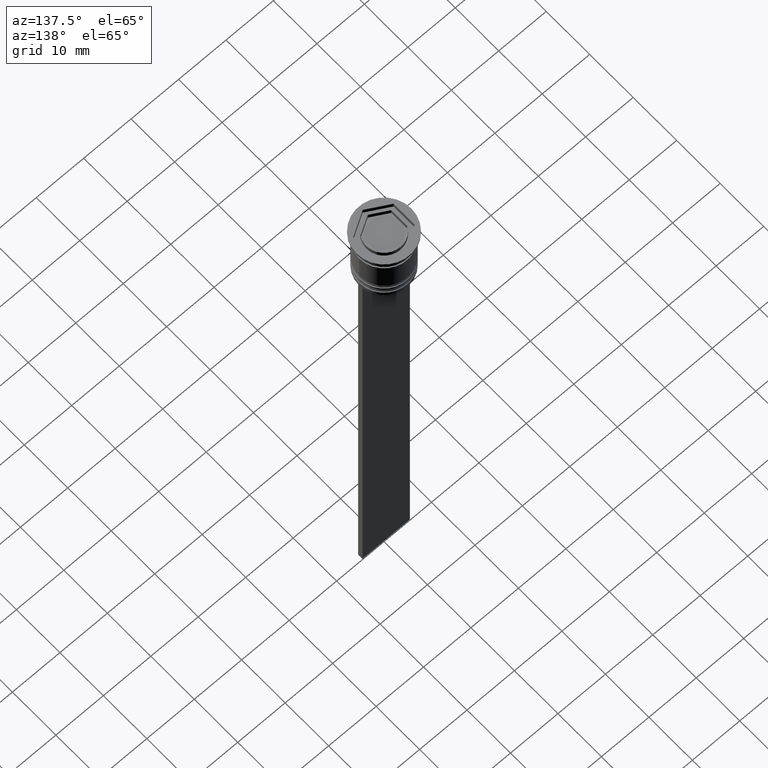
[diagram: clean part render]
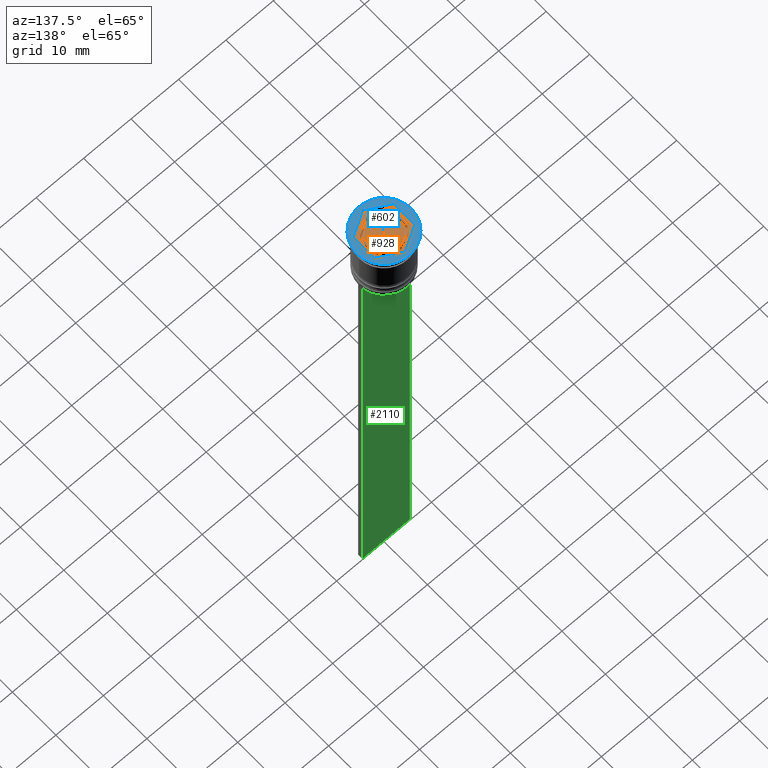
[diagram: same view with three faces highlighted in distinct colors, each labeled with its STEP entity id]
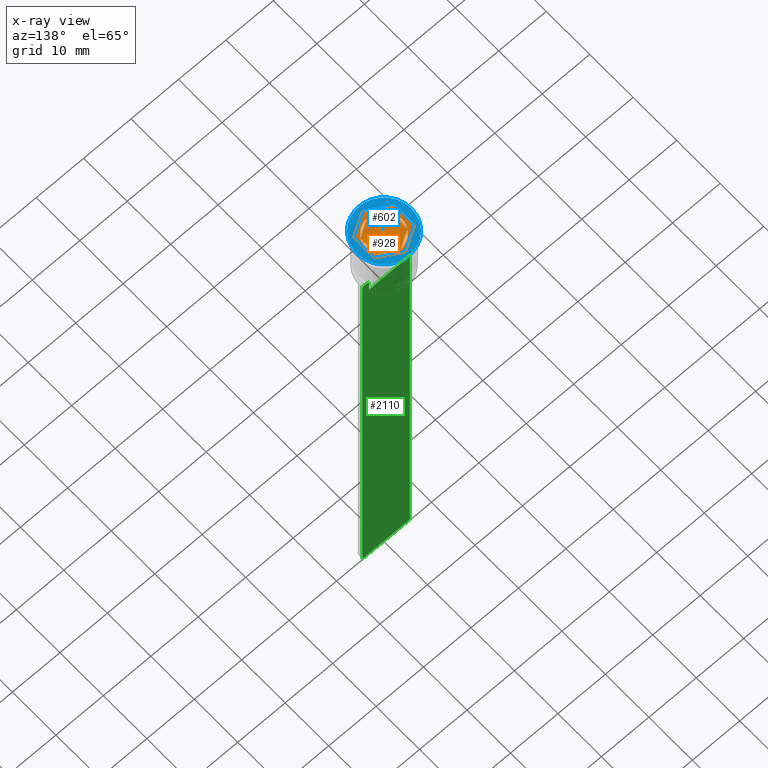
[diagram: x-ray of the same camera — body ghosted, the three highlighted faces saturated]
A machine part, auxiliary view with three faces highlighted in distinct colors.
The next image is the same camera in x-ray (body ghosted, the three faces saturated) — at least one of them is partly hidden behind the body in this view.
Their STEP definitions:

[orange] entity #928 — the highlighted planar face has unit normal (0, 0, 1).
#8 = CARTESIAN_POINT ( 'NONE',  ( -3.250000000000000444, 1.876388374866283515, -1.000000000000000888 ) ) ;
#10 = VECTOR ( 'NONE', #1110, 1000.000000000000114 ) ;
#20 = CIRCLE ( 'NONE', #2177, 3.750000000000000888 ) ;
#38 = EDGE_LOOP ( 'NONE', ( #1769, #494 ) ) ;
#65 = ORIENTED_EDGE ( 'NONE', *, *, #1223, .F. ) ;
#68 = DIRECTION ( 'NONE',  ( 1.000000000000000000, 0.000000000000000000, 0.000000000000000000 ) ) ;
#79 = EDGE_LOOP ( 'NONE', ( #2032, #2308, #65 ) ) ;
#100 = ORIENTED_EDGE ( 'NONE', *, *, #1462, .T. ) ;
#104 = VERTEX_POINT ( 'NONE', #1441 ) ;
#109 = CARTESIAN_POINT ( 'NONE',  ( 3.249999999999999556, -1.870828693386972885, -1.000000000000000888 ) ) ;
#122 = VECTOR ( 'NONE', #723, 1000.000000000000000 ) ;
#135 = CARTESIAN_POINT ( 'NONE',  ( -3.245185174601965983, 1.879168215605940384, -1.000000000000000888 ) ) ;
#141 = PLANE ( 'NONE',  #1309 ) ;
#194 = VERTEX_POINT ( 'NONE', #1233 ) ;
#197 = CARTESIAN_POINT ( 'NONE',  ( -4.250000000000000000, 2.453738644055909468, -1.000000000000000000 ) ) ;
#211 = EDGE_CURVE ( 'NONE', #1430, #440, #236, .T. ) ;
#236 = LINE ( 'NONE', #2232, #352 ) ;
#260 = VERTEX_POINT ( 'NONE', #1115 ) ;
#268 = DIRECTION ( 'NONE',  ( 0.000000000000000000, 0.000000000000000000, 1.000000000000000000 ) ) ;
#295 = DIRECTION ( 'NONE',  ( 1.000000000000000000, 0.000000000000000000, 0.000000000000000000 ) ) ;
#300 = ORIENTED_EDGE ( 'NONE', *, *, #736, .T. ) ;
#311 = EDGE_CURVE ( 'NONE', #411, #1304, #2056, .T. ) ;
#316 = VECTOR ( 'NONE', #1823, 1000.000000000000000 ) ;
#320 = VECTOR ( 'NONE', #994, 1000.000000000000114 ) ;
#341 = CARTESIAN_POINT ( 'NONE',  ( 0.000000000000000000, 0.000000000000000000, -1.000000000000000000 ) ) ;
#352 = VECTOR ( 'NONE', #563, 1000.000000000000000 ) ;
#357 = EDGE_CURVE ( 'NONE', #1160, #2197, #1724, .T. ) ;
#366 = CARTESIAN_POINT ( 'NONE',  ( -3.245185174601965983, -1.879168215605940384, -1.000000000000000888 ) ) ;
#367 = DIRECTION ( 'NONE',  ( 1.000000000000000000, 0.000000000000000000, 0.000000000000000000 ) ) ;
#406 = VERTEX_POINT ( 'NONE', #135 ) ;
#407 = LINE ( 'NONE', #1447, #1758 ) ;
#411 = VERTEX_POINT ( 'NONE', #1367 ) ;
#414 = EDGE_CURVE ( 'NONE', #861, #104, #853, .T. ) ;
#440 = VERTEX_POINT ( 'NONE', #109 ) ;
#445 = CARTESIAN_POINT ( 'NONE',  ( -3.250000000000000444, -1.876388374866283515, -1.000000000000000888 ) ) ;
#461 = AXIS2_PLACEMENT_3D ( 'NONE', #1986, #1229, #367 ) ;
#473 = LINE ( 'NONE', #1196, #320 ) ;
#478 = DIRECTION ( 'NONE',  ( 1.000000000000000000, 0.000000000000000000, 0.000000000000000000 ) ) ;
#485 = EDGE_CURVE ( 'NONE', #961, #260, #2014, .T. ) ;
#490 = FACE_BOUND ( 'NONE', #1055, .T. ) ;
#494 = ORIENTED_EDGE ( 'NONE', *, *, #2077, .F. ) ;
#504 = DIRECTION ( 'NONE',  ( 0.000000000000000000, 0.000000000000000000, 1.000000000000000000 ) ) ;
#514 = FACE_BOUND ( 'NONE', #932, .T. ) ;
#523 = FACE_BOUND ( 'NONE', #2277, .T. ) ;
#563 = DIRECTION ( 'NONE',  ( -4.622506457652797323E-16, -1.000000000000000000, 0.000000000000000000 ) ) ;
#576 = CIRCLE ( 'NONE', #1484, 3.750000000000000888 ) ;
#577 = CARTESIAN_POINT ( 'NONE',  ( 0.000000000000000000, 4.907477288111818936, -1.000000000000000000 ) ) ;
#580 = DIRECTION ( 'NONE',  ( 0.8660254037844385966, 0.5000000000000001110, 0.000000000000000000 ) ) ;
#607 = CIRCLE ( 'NONE', #1989, 3.750000000000000888 ) ;
#610 = EDGE_LOOP ( 'NONE', ( #300, #1288, #2314, #771, #100, #1235 ) ) ;
#621 = CARTESIAN_POINT ( 'NONE',  ( 0.004814825398034112622, 3.749996908992911493, -1.000000000000000888 ) ) ;
#628 = ORIENTED_EDGE ( 'NONE', *, *, #1260, .F. ) ;
#649 = CARTESIAN_POINT ( 'NONE',  ( -3.750000000000000888, 0.000000000000000000, -1.000000000000000000 ) ) ;
#652 = DIRECTION ( 'NONE',  ( 0.000000000000000000, 0.000000000000000000, 1.000000000000000000 ) ) ;
#654 = EDGE_CURVE ( 'NONE', #1387, #194, #576, .T. ) ;
#711 = FACE_BOUND ( 'NONE', #1913, .T. ) ;
#712 = CARTESIAN_POINT ( 'NONE',  ( 3.245185174601965095, 1.879168215605940828, -1.000000000000000888 ) ) ;
#723 = DIRECTION ( 'NONE',  ( 0.000000000000000000, 1.000000000000000000, 0.000000000000000000 ) ) ;
#736 = EDGE_CURVE ( 'NONE', #104, #411, #1342, .T. ) ;
#758 = LINE ( 'NONE', #197, #2133 ) ;
#771 = ORIENTED_EDGE ( 'NONE', *, *, #1600, .T. ) ;
#779 = DIRECTION ( 'NONE',  ( -0.8660254037844387076, -0.4999999999999999445, 0.000000000000000000 ) ) ;
#841 = ORIENTED_EDGE ( 'NONE', *, *, #1271, .F. ) ;
#853 = LINE ( 'NONE', #1572, #2250 ) ;
#857 = CARTESIAN_POINT ( 'NONE',  ( 4.392932287340942424E-16, -4.907477288111819824, -1.000000000000000000 ) ) ;
#861 = VERTEX_POINT ( 'NONE', #2266 ) ;
#897 = LINE ( 'NONE', #8, #122 ) ;
#904 = CARTESIAN_POINT ( 'NONE',  ( -4.250000000000000000, -2.453738644055909912, -1.000000000000000000 ) ) ;
#907 = FACE_BOUND ( 'NONE', #38, .T. ) ;
#923 = DIRECTION ( 'NONE',  ( 0.000000000000000000, -1.000000000000000000, 0.000000000000000000 ) ) ;
#928 = ADVANCED_FACE ( 'NONE', ( #711, #523, #514, #490, #1076, #907, #1978 ), #141, .T. ) ;
#932 = EDGE_LOOP ( 'NONE', ( #1926, #1168 ) ) ;
#947 = DIRECTION ( 'NONE',  ( 1.000000000000000000, 0.000000000000000000, 0.000000000000000000 ) ) ;
#953 = EDGE_CURVE ( 'NONE', #1390, #406, #20, .T. ) ;
#961 = VERTEX_POINT ( 'NONE', #1404 ) ;
#980 = EDGE_CURVE ( 'NONE', #440, #1430, #1175, .T. ) ;
#994 = DIRECTION ( 'NONE',  ( 0.8660254037844385966, 0.5000000000000001110, -0.000000000000000000 ) ) ;
#1012 = EDGE_CURVE ( 'NONE', #2040, #1500, #897, .T. ) ;
#1024 = LINE ( 'NONE', #445, #1626 ) ;
#1048 = CARTESIAN_POINT ( 'NONE',  ( 3.250000000000001332, 1.870828693386969777, -1.000000000000000888 ) ) ;
#1055 = EDGE_LOOP ( 'NONE', ( #1942, #841 ) ) ;
#1076 = FACE_BOUND ( 'NONE', #79, .T. ) ;
#1107 = CIRCLE ( 'NONE', #1227, 3.750000000000000888 ) ;
#1110 = DIRECTION ( 'NONE',  ( -0.8660254037844387076, 0.4999999999999998335, 0.000000000000000000 ) ) ;
#1115 = CARTESIAN_POINT ( 'NONE',  ( 0.004814825398034546303, -3.749996908992911493, -1.000000000000000888 ) ) ;
#1138 = DIRECTION ( 'NONE',  ( 0.000000000000000000, 0.000000000000000000, 1.000000000000000000 ) ) ;
#1145 = EDGE_CURVE ( 'NONE', #1304, #1328, #758, .T. ) ;
#1160 = VERTEX_POINT ( 'NONE', #621 ) ;
#1168 = ORIENTED_EDGE ( 'NONE', *, *, #485, .F. ) ;
#1175 = CIRCLE ( 'NONE', #461, 3.750000000000000888 ) ;
#1196 = CARTESIAN_POINT ( 'NONE',  ( 0.000000000000000000, 3.752776749732567474, -1.000000000000000888 ) ) ;
#1198 = ORIENTED_EDGE ( 'NONE', *, *, #980, .F. ) ;
#1210 = DIRECTION ( 'NONE',  ( 1.000000000000000000, 0.000000000000000000, -0.000000000000000000 ) ) ;
#1215 = DIRECTION ( 'NONE',  ( 0.8660254037844387076, -0.4999999999999998890, 0.000000000000000000 ) ) ;
#1223 = EDGE_CURVE ( 'NONE', #1695, #2040, #1300, .T. ) ;
#1227 = AXIS2_PLACEMENT_3D ( 'NONE', #2202, #1877, #68 ) ;
#1229 = DIRECTION ( 'NONE',  ( 0.000000000000000000, 0.000000000000000000, 1.000000000000000000 ) ) ;
#1233 = CARTESIAN_POINT ( 'NONE',  ( -0.004814825398034979984, -3.749996908992911937, -1.000000000000000888 ) ) ;
#1235 = ORIENTED_EDGE ( 'NONE', *, *, #414, .T. ) ;
#1260 = EDGE_CURVE ( 'NONE', #2197, #1160, #607, .T. ) ;
#1271 = EDGE_CURVE ( 'NONE', #194, #1387, #1024, .T. ) ;
#1288 = ORIENTED_EDGE ( 'NONE', *, *, #311, .T. ) ;
#1300 = CIRCLE ( 'NONE', #1338, 3.750000000000000888 ) ;
#1304 = VERTEX_POINT ( 'NONE', #2158 ) ;
#1309 = AXIS2_PLACEMENT_3D ( 'NONE', #341, #1787, #1210 ) ;
#1311 = AXIS2_PLACEMENT_3D ( 'NONE', #1607, #504, #1614 ) ;
#1316 = CARTESIAN_POINT ( 'NONE',  ( -3.250000000000000444, 1.870828693386971331, -1.000000000000000888 ) ) ;
#1328 = VERTEX_POINT ( 'NONE', #1604 ) ;
#1338 = AXIS2_PLACEMENT_3D ( 'NONE', #2274, #652, #295 ) ;
#1342 = LINE ( 'NONE', #2069, #10 ) ;
#1367 = CARTESIAN_POINT ( 'NONE',  ( 0.000000000000000000, 4.907477288111818936, -1.000000000000000000 ) ) ;
#1368 = VERTEX_POINT ( 'NONE', #857 ) ;
#1387 = VERTEX_POINT ( 'NONE', #366 ) ;
#1388 = CARTESIAN_POINT ( 'NONE',  ( 3.250000000000001332, 1.876388374866283959, -1.000000000000000888 ) ) ;
#1390 = VERTEX_POINT ( 'NONE', #2166 ) ;
#1404 = CARTESIAN_POINT ( 'NONE',  ( 3.245185174601965983, -1.879168215605940606, -1.000000000000000888 ) ) ;
#1413 = VECTOR ( 'NONE', #2162, 1000.000000000000114 ) ;
#1419 = DIRECTION ( 'NONE',  ( 1.000000000000000000, 0.000000000000000000, 0.000000000000000000 ) ) ;
#1430 = VERTEX_POINT ( 'NONE', #1048 ) ;
#1441 = CARTESIAN_POINT ( 'NONE',  ( 4.250000000000000000, 2.453738644055909912, -1.000000000000000000 ) ) ;
#1442 = CARTESIAN_POINT ( 'NONE',  ( -3.250000000000000444, -1.870828693386971331, -1.000000000000000888 ) ) ;
#1447 = CARTESIAN_POINT ( 'NONE',  ( 4.392932287340942424E-16, -4.907477288111819824, -1.000000000000000000 ) ) ;
#1462 = EDGE_CURVE ( 'NONE', #1368, #861, #407, .T. ) ;
#1484 = AXIS2_PLACEMENT_3D ( 'NONE', #2228, #1138, #947 ) ;
#1500 = VERTEX_POINT ( 'NONE', #1316 ) ;
#1572 = CARTESIAN_POINT ( 'NONE',  ( 4.250000000000000000, -2.453738644055909912, -1.000000000000000000 ) ) ;
#1600 = EDGE_CURVE ( 'NONE', #1328, #1368, #1812, .T. ) ;
#1604 = CARTESIAN_POINT ( 'NONE',  ( -4.250000000000000000, -2.453738644055909912, -1.000000000000000000 ) ) ;
#1607 = CARTESIAN_POINT ( 'NONE',  ( 0.000000000000000000, 0.000000000000000000, -1.000000000000000000 ) ) ;
#1614 = DIRECTION ( 'NONE',  ( 1.000000000000000000, 0.000000000000000000, 0.000000000000000000 ) ) ;
#1626 = VECTOR ( 'NONE', #1886, 1000.000000000000114 ) ;
#1695 = VERTEX_POINT ( 'NONE', #649 ) ;
#1724 = LINE ( 'NONE', #1388, #1992 ) ;
#1740 = CARTESIAN_POINT ( 'NONE',  ( 0.000000000000000000, 0.000000000000000000, -1.000000000000000000 ) ) ;
#1758 = VECTOR ( 'NONE', #580, 1000.000000000000000 ) ;
#1769 = ORIENTED_EDGE ( 'NONE', *, *, #953, .F. ) ;
#1787 = DIRECTION ( 'NONE',  ( 0.000000000000000000, 0.000000000000000000, 1.000000000000000000 ) ) ;
#1812 = LINE ( 'NONE', #904, #316 ) ;
#1823 = DIRECTION ( 'NONE',  ( 0.8660254037844387076, -0.4999999999999999445, 0.000000000000000000 ) ) ;
#1877 = DIRECTION ( 'NONE',  ( 0.000000000000000000, 0.000000000000000000, 1.000000000000000000 ) ) ;
#1886 = DIRECTION ( 'NONE',  ( -0.8660254037844385966, 0.5000000000000001110, 0.000000000000000000 ) ) ;
#1913 = EDGE_LOOP ( 'NONE', ( #628, #2124 ) ) ;
#1926 = ORIENTED_EDGE ( 'NONE', *, *, #2344, .F. ) ;
#1942 = ORIENTED_EDGE ( 'NONE', *, *, #654, .F. ) ;
#1954 = DIRECTION ( 'NONE',  ( 0.000000000000000000, 0.000000000000000000, 1.000000000000000000 ) ) ;
#1978 = FACE_OUTER_BOUND ( 'NONE', #610, .T. ) ;
#1986 = CARTESIAN_POINT ( 'NONE',  ( 0.000000000000000000, 0.000000000000000000, -1.000000000000000000 ) ) ;
#1989 = AXIS2_PLACEMENT_3D ( 'NONE', #1740, #268, #478 ) ;
#1992 = VECTOR ( 'NONE', #1215, 1000.000000000000000 ) ;
#2014 = LINE ( 'NONE', #2185, #1413 ) ;
#2032 = ORIENTED_EDGE ( 'NONE', *, *, #2276, .F. ) ;
#2040 = VERTEX_POINT ( 'NONE', #1442 ) ;
#2056 = LINE ( 'NONE', #577, #2063 ) ;
#2063 = VECTOR ( 'NONE', #779, 999.9999999999998863 ) ;
#2067 = CIRCLE ( 'NONE', #1311, 3.750000000000000888 ) ;
#2069 = CARTESIAN_POINT ( 'NONE',  ( 4.250000000000000000, 2.453738644055909912, -1.000000000000000000 ) ) ;
#2071 = ORIENTED_EDGE ( 'NONE', *, *, #211, .F. ) ;
#2077 = EDGE_CURVE ( 'NONE', #406, #1390, #473, .T. ) ;
#2124 = ORIENTED_EDGE ( 'NONE', *, *, #357, .F. ) ;
#2133 = VECTOR ( 'NONE', #923, 1000.000000000000000 ) ;
#2158 = CARTESIAN_POINT ( 'NONE',  ( -4.250000000000000000, 2.453738644055909468, -1.000000000000000000 ) ) ;
#2162 = DIRECTION ( 'NONE',  ( -0.8660254037844385966, -0.4999999999999999445, 0.000000000000000000 ) ) ;
#2166 = CARTESIAN_POINT ( 'NONE',  ( -0.004814825398034979984, 3.749996908992911937, -1.000000000000000888 ) ) ;
#2177 = AXIS2_PLACEMENT_3D ( 'NONE', #2315, #1954, #1419 ) ;
#2185 = CARTESIAN_POINT ( 'NONE',  ( -2.168404344971008868E-16, -3.752776749732567474, -1.000000000000000888 ) ) ;
#2197 = VERTEX_POINT ( 'NONE', #712 ) ;
#2202 = CARTESIAN_POINT ( 'NONE',  ( 0.000000000000000000, 0.000000000000000000, -1.000000000000000000 ) ) ;
#2228 = CARTESIAN_POINT ( 'NONE',  ( 0.000000000000000000, 0.000000000000000000, -1.000000000000000000 ) ) ;
#2232 = CARTESIAN_POINT ( 'NONE',  ( 3.249999999999999556, -1.876388374866284403, -1.000000000000000888 ) ) ;
#2250 = VECTOR ( 'NONE', #2306, 1000.000000000000000 ) ;
#2266 = CARTESIAN_POINT ( 'NONE',  ( 4.250000000000000000, -2.453738644055909912, -1.000000000000000000 ) ) ;
#2274 = CARTESIAN_POINT ( 'NONE',  ( 0.000000000000000000, 0.000000000000000000, -1.000000000000000000 ) ) ;
#2276 = EDGE_CURVE ( 'NONE', #1500, #1695, #2067, .T. ) ;
#2277 = EDGE_LOOP ( 'NONE', ( #1198, #2071 ) ) ;
#2306 = DIRECTION ( 'NONE',  ( 0.000000000000000000, 1.000000000000000000, 0.000000000000000000 ) ) ;
#2308 = ORIENTED_EDGE ( 'NONE', *, *, #1012, .F. ) ;
#2314 = ORIENTED_EDGE ( 'NONE', *, *, #1145, .T. ) ;
#2315 = CARTESIAN_POINT ( 'NONE',  ( 0.000000000000000000, 0.000000000000000000, -1.000000000000000000 ) ) ;
#2344 = EDGE_CURVE ( 'NONE', #260, #961, #1107, .T. ) ;

[blue] entity #602 — the highlighted planar face has unit normal (0, -0, 1).
#33 = CARTESIAN_POINT ( 'NONE',  ( 0.000000000000000000, 4.907477288111818936, 0.000000000000000000 ) ) ;
#45 = LINE ( 'NONE', #1119, #926 ) ;
#52 = AXIS2_PLACEMENT_3D ( 'NONE', #695, #2154, #517 ) ;
#56 = VECTOR ( 'NONE', #1906, 1000.000000000000000 ) ;
#101 = DIRECTION ( 'NONE',  ( -0.8660254037844387076, -0.4999999999999999445, 0.000000000000000000 ) ) ;
#294 = LINE ( 'NONE', #1147, #1445 ) ;
#312 = CARTESIAN_POINT ( 'NONE',  ( -4.250000000000000000, -2.453738644055909912, 0.000000000000000000 ) ) ;
#360 = PLANE ( 'NONE',  #1033 ) ;
#439 = CARTESIAN_POINT ( 'NONE',  ( 4.250000000000000000, 2.453738644055909912, 0.000000000000000000 ) ) ;
#482 = LINE ( 'NONE', #1538, #56 ) ;
#517 = DIRECTION ( 'NONE',  ( 1.000000000000000000, 0.000000000000000000, 0.000000000000000000 ) ) ;
#546 = ORIENTED_EDGE ( 'NONE', *, *, #2108, .T. ) ;
#585 = EDGE_CURVE ( 'NONE', #1892, #2204, #1795, .T. ) ;
#602 = ADVANCED_FACE ( 'NONE', ( #1065, #1793 ), #360, .T. ) ;
#606 = ORIENTED_EDGE ( 'NONE', *, *, #722, .F. ) ;
#666 = VERTEX_POINT ( 'NONE', #1866 ) ;
#673 = CARTESIAN_POINT ( 'NONE',  ( 5.750000000000000000, 0.000000000000000000, 0.000000000000000000 ) ) ;
#687 = AXIS2_PLACEMENT_3D ( 'NONE', #1743, #1920, #1731 ) ;
#695 = CARTESIAN_POINT ( 'NONE',  ( 0.000000000000000000, 0.000000000000000000, 0.000000000000000000 ) ) ;
#722 = EDGE_CURVE ( 'NONE', #742, #2047, #45, .T. ) ;
#742 = VERTEX_POINT ( 'NONE', #1751 ) ;
#761 = EDGE_CURVE ( 'NONE', #666, #742, #1195, .T. ) ;
#791 = EDGE_LOOP ( 'NONE', ( #2188, #546 ) ) ;
#811 = CARTESIAN_POINT ( 'NONE',  ( -4.250000000000000000, 2.453738644055909468, 0.000000000000000000 ) ) ;
#827 = LINE ( 'NONE', #1870, #1409 ) ;
#909 = ORIENTED_EDGE ( 'NONE', *, *, #1784, .F. ) ;
#926 = VECTOR ( 'NONE', #1461, 1000.000000000000000 ) ;
#1023 = LINE ( 'NONE', #1982, #1991 ) ;
#1033 = AXIS2_PLACEMENT_3D ( 'NONE', #1805, #1439, #2171 ) ;
#1065 = FACE_BOUND ( 'NONE', #1688, .T. ) ;
#1119 = CARTESIAN_POINT ( 'NONE',  ( 4.250000000000000000, -2.453738644055909912, 0.000000000000000000 ) ) ;
#1147 = CARTESIAN_POINT ( 'NONE',  ( 4.250000000000000000, 2.453738644055909912, 0.000000000000000000 ) ) ;
#1195 = LINE ( 'NONE', #2114, #1876 ) ;
#1205 = DIRECTION ( 'NONE',  ( 0.8660254037844385966, 0.5000000000000001110, 0.000000000000000000 ) ) ;
#1222 = DIRECTION ( 'NONE',  ( 0.000000000000000000, -1.000000000000000000, 0.000000000000000000 ) ) ;
#1282 = CARTESIAN_POINT ( 'NONE',  ( -5.750000000000000000, 7.041719095097280880E-16, 0.000000000000000000 ) ) ;
#1403 = ORIENTED_EDGE ( 'NONE', *, *, #761, .F. ) ;
#1409 = VECTOR ( 'NONE', #101, 999.9999999999998863 ) ;
#1439 = DIRECTION ( 'NONE',  ( 0.000000000000000000, -0.000000000000000000, 1.000000000000000000 ) ) ;
#1445 = VECTOR ( 'NONE', #1884, 1000.000000000000114 ) ;
#1461 = DIRECTION ( 'NONE',  ( 0.000000000000000000, 1.000000000000000000, 0.000000000000000000 ) ) ;
#1487 = VERTEX_POINT ( 'NONE', #33 ) ;
#1538 = CARTESIAN_POINT ( 'NONE',  ( -4.250000000000000000, -2.453738644055909912, 0.000000000000000000 ) ) ;
#1643 = EDGE_CURVE ( 'NONE', #1487, #2149, #827, .T. ) ;
#1688 = EDGE_LOOP ( 'NONE', ( #1983, #606, #1403, #2009, #909, #1813 ) ) ;
#1708 = EDGE_CURVE ( 'NONE', #2047, #1487, #294, .T. ) ;
#1731 = DIRECTION ( 'NONE',  ( 1.000000000000000000, 0.000000000000000000, 0.000000000000000000 ) ) ;
#1743 = CARTESIAN_POINT ( 'NONE',  ( 0.000000000000000000, 0.000000000000000000, 0.000000000000000000 ) ) ;
#1751 = CARTESIAN_POINT ( 'NONE',  ( 4.250000000000000000, -2.453738644055909912, 0.000000000000000000 ) ) ;
#1784 = EDGE_CURVE ( 'NONE', #2149, #1885, #1023, .T. ) ;
#1793 = FACE_OUTER_BOUND ( 'NONE', #791, .T. ) ;
#1795 = CIRCLE ( 'NONE', #52, 5.750000000000000000 ) ;
#1805 = CARTESIAN_POINT ( 'NONE',  ( 0.000000000000000000, 0.000000000000000000, 0.000000000000000000 ) ) ;
#1813 = ORIENTED_EDGE ( 'NONE', *, *, #1643, .F. ) ;
#1866 = CARTESIAN_POINT ( 'NONE',  ( 4.392932287340942424E-16, -4.907477288111819824, 0.000000000000000000 ) ) ;
#1870 = CARTESIAN_POINT ( 'NONE',  ( 0.000000000000000000, 4.907477288111818936, 0.000000000000000000 ) ) ;
#1876 = VECTOR ( 'NONE', #1205, 1000.000000000000000 ) ;
#1884 = DIRECTION ( 'NONE',  ( -0.8660254037844387076, 0.4999999999999998335, 0.000000000000000000 ) ) ;
#1885 = VERTEX_POINT ( 'NONE', #312 ) ;
#1892 = VERTEX_POINT ( 'NONE', #673 ) ;
#1906 = DIRECTION ( 'NONE',  ( 0.8660254037844387076, -0.4999999999999999445, 0.000000000000000000 ) ) ;
#1920 = DIRECTION ( 'NONE',  ( -0.000000000000000000, -0.000000000000000000, 1.000000000000000000 ) ) ;
#1982 = CARTESIAN_POINT ( 'NONE',  ( -4.250000000000000000, 2.453738644055909468, 0.000000000000000000 ) ) ;
#1983 = ORIENTED_EDGE ( 'NONE', *, *, #1708, .F. ) ;
#1991 = VECTOR ( 'NONE', #1222, 1000.000000000000000 ) ;
#2009 = ORIENTED_EDGE ( 'NONE', *, *, #2161, .F. ) ;
#2047 = VERTEX_POINT ( 'NONE', #439 ) ;
#2101 = CIRCLE ( 'NONE', #687, 5.750000000000000000 ) ;
#2108 = EDGE_CURVE ( 'NONE', #2204, #1892, #2101, .T. ) ;
#2114 = CARTESIAN_POINT ( 'NONE',  ( 4.392932287340942424E-16, -4.907477288111819824, 0.000000000000000000 ) ) ;
#2149 = VERTEX_POINT ( 'NONE', #811 ) ;
#2154 = DIRECTION ( 'NONE',  ( -0.000000000000000000, -0.000000000000000000, 1.000000000000000000 ) ) ;
#2161 = EDGE_CURVE ( 'NONE', #1885, #666, #482, .T. ) ;
#2171 = DIRECTION ( 'NONE',  ( 1.000000000000000000, 0.000000000000000000, 0.000000000000000000 ) ) ;
#2188 = ORIENTED_EDGE ( 'NONE', *, *, #585, .T. ) ;
#2204 = VERTEX_POINT ( 'NONE', #1282 ) ;

[green] entity #2110 — the highlighted planar face has unit normal (0, -1, -0).
#50 = LINE ( 'NONE', #1358, #648 ) ;
#62 = ORIENTED_EDGE ( 'NONE', *, *, #1401, .T. ) ;
#70 = EDGE_CURVE ( 'NONE', #1188, #369, #979, .T. ) ;
#113 = ORIENTED_EDGE ( 'NONE', *, *, #70, .T. ) ;
#114 = CARTESIAN_POINT ( 'NONE',  ( -4.999999999999999112, 0.4999999999999993339, -12.50000000000000000 ) ) ;
#139 = EDGE_CURVE ( 'NONE', #1771, #1064, #716, .T. ) ;
#165 = VERTEX_POINT ( 'NONE', #1819 ) ;
#176 = B_SPLINE_CURVE_WITH_KNOTS ( 'NONE', 3,
 ( #2283, #644, #1380, #2109 ),
 .UNSPECIFIED., .F., .F.,
 ( 4, 4 ),
 ( 0.007067514914986626831, 0.007777582239375527978 ),
 .UNSPECIFIED. ) ;
#247 = CARTESIAN_POINT ( 'NONE',  ( -4.999999999999999112, 0.4999999999999991673, -2.450124378879110054 ) ) ;
#262 = CARTESIAN_POINT ( 'NONE',  ( 4.119769411022908834, 0.4999999999999991673, -12.50000000000000000 ) ) ;
#336 = EDGE_CURVE ( 'NONE', #349, #1466, #50, .T. ) ;
#349 = VERTEX_POINT ( 'NONE', #1525 ) ;
#354 = VECTOR ( 'NONE', #1458, 1000.000000000000000 ) ;
#369 = VERTEX_POINT ( 'NONE', #2260 ) ;
#374 = CARTESIAN_POINT ( 'NONE',  ( 3.615591237958188042, 0.4999999999999991673, -13.00000000000000178 ) ) ;
#388 = CARTESIAN_POINT ( 'NONE',  ( 3.615591237958188042, 0.4999999999999991673, -13.00000000000000178 ) ) ;
#429 = VECTOR ( 'NONE', #1577, 1000.000000000000000 ) ;
#446 = EDGE_CURVE ( 'NONE', #165, #1245, #176, .T. ) ;
#449 = CARTESIAN_POINT ( 'NONE',  ( 5.000000000000000000, 0.4999999999999991673, -2.450124378879110054 ) ) ;
#510 = ORIENTED_EDGE ( 'NONE', *, *, #2043, .T. ) ;
#525 = CARTESIAN_POINT ( 'NONE',  ( 5.000000000000000000, 0.4999999999999991673, -2.450124378879110054 ) ) ;
#553 = EDGE_CURVE ( 'NONE', #369, #349, #1770, .T. ) ;
#567 = EDGE_LOOP ( 'NONE', ( #1888, #2292, #713, #62, #1801, #510, #113, #915, #751, #2282 ) ) ;
#644 = CARTESIAN_POINT ( 'NONE',  ( -3.951794205566887985, 0.4999999999999991673, -12.66675159355373737 ) ) ;
#648 = VECTOR ( 'NONE', #2117, 1000.000000000000000 ) ;
#710 = CARTESIAN_POINT ( 'NONE',  ( 0.000000000000000000, 0.4999999999999991673, -15.50000000000000000 ) ) ;
#713 = ORIENTED_EDGE ( 'NONE', *, *, #1455, .T. ) ;
#716 = LINE ( 'NONE', #901, #2137 ) ;
#746 = CARTESIAN_POINT ( 'NONE',  ( -4.999999999999999112, 0.4999999999999991673, -112.5000000000000000 ) ) ;
#751 = ORIENTED_EDGE ( 'NONE', *, *, #336, .T. ) ;
#773 = DIRECTION ( 'NONE',  ( 0.000000000000000000, 0.000000000000000000, -1.000000000000000000 ) ) ;
#793 = CARTESIAN_POINT ( 'NONE',  ( 5.000000000000000000, 0.4999999999999991673, -12.50000000000000000 ) ) ;
#854 = VERTEX_POINT ( 'NONE', #114 ) ;
#901 = CARTESIAN_POINT ( 'NONE',  ( 3.615591237958188042, 0.4999999999999991673, 0.000000000000000000 ) ) ;
#915 = ORIENTED_EDGE ( 'NONE', *, *, #553, .T. ) ;
#934 = LINE ( 'NONE', #1491, #354 ) ;
#979 = LINE ( 'NONE', #793, #1869 ) ;
#990 = CARTESIAN_POINT ( 'NONE',  ( -3.615591237958188042, 0.4999999999999991673, -13.00000000000000178 ) ) ;
#1027 = DIRECTION ( 'NONE',  ( 0.000000000000000000, 0.000000000000000000, -1.000000000000000000 ) ) ;
#1062 = LINE ( 'NONE', #247, #2330 ) ;
#1064 = VERTEX_POINT ( 'NONE', #388 ) ;
#1089 = LINE ( 'NONE', #1706, #1448 ) ;
#1155 = CARTESIAN_POINT ( 'NONE',  ( 3.951794168112527927, 0.4999999999999991673, -12.66675163073525923 ) ) ;
#1188 = VERTEX_POINT ( 'NONE', #1727 ) ;
#1245 = VERTEX_POINT ( 'NONE', #990 ) ;
#1255 = DIRECTION ( 'NONE',  ( 0.000000000000000000, 0.000000000000000000, -1.000000000000000000 ) ) ;
#1341 = VECTOR ( 'NONE', #1255, 1000.000000000000000 ) ;
#1358 = CARTESIAN_POINT ( 'NONE',  ( 5.000000000000000000, 0.4999999999999991673, -112.5000000000000000 ) ) ;
#1380 = CARTESIAN_POINT ( 'NONE',  ( -3.783746449387932920, 0.4999999999999991673, -12.83342999751715752 ) ) ;
#1401 = EDGE_CURVE ( 'NONE', #2310, #1771, #1565, .T. ) ;
#1411 = B_SPLINE_CURVE_WITH_KNOTS ( 'NONE', 3,
 ( #374, #2178, #1155, #262 ),
 .UNSPECIFIED., .F., .F.,
 ( 4, 4 ),
 ( 0.01745179617248911533, 0.01816207215777259493 ),
 .UNSPECIFIED. ) ;
#1448 = VECTOR ( 'NONE', #1820, 1000.000000000000000 ) ;
#1455 = EDGE_CURVE ( 'NONE', #1245, #2310, #934, .T. ) ;
#1458 = DIRECTION ( 'NONE',  ( 0.000000000000000000, 0.000000000000000000, -1.000000000000000000 ) ) ;
#1466 = VERTEX_POINT ( 'NONE', #746 ) ;
#1491 = CARTESIAN_POINT ( 'NONE',  ( -3.615591237958188042, 0.4999999999999991673, 0.000000000000000000 ) ) ;
#1514 = DIRECTION ( 'NONE',  ( 1.000000000000000000, 0.000000000000000000, 0.000000000000000000 ) ) ;
#1525 = CARTESIAN_POINT ( 'NONE',  ( 5.000000000000000000, 0.4999999999999991673, -112.5000000000000000 ) ) ;
#1529 = CARTESIAN_POINT ( 'NONE',  ( 3.615591237958188486, 0.4999999999999991673, -15.50000000000000000 ) ) ;
#1565 = LINE ( 'NONE', #710, #429 ) ;
#1577 = DIRECTION ( 'NONE',  ( 1.000000000000000000, 0.000000000000000000, 0.000000000000000000 ) ) ;
#1616 = DIRECTION ( 'NONE',  ( -0.000000000000000000, -0.000000000000000000, 1.000000000000000000 ) ) ;
#1706 = CARTESIAN_POINT ( 'NONE',  ( 5.000000000000000000, 0.4999999999999991673, -12.50000000000000000 ) ) ;
#1720 = FACE_OUTER_BOUND ( 'NONE', #567, .T. ) ;
#1727 = CARTESIAN_POINT ( 'NONE',  ( 4.119769411022908834, 0.4999999999999991673, -12.50000000000000000 ) ) ;
#1770 = LINE ( 'NONE', #525, #1341 ) ;
#1771 = VERTEX_POINT ( 'NONE', #1529 ) ;
#1801 = ORIENTED_EDGE ( 'NONE', *, *, #139, .T. ) ;
#1819 = CARTESIAN_POINT ( 'NONE',  ( -4.119769411022908834, 0.4999999999999991673, -12.50000000000000000 ) ) ;
#1820 = DIRECTION ( 'NONE',  ( 1.000000000000000000, 0.000000000000000000, 0.000000000000000000 ) ) ;
#1869 = VECTOR ( 'NONE', #1514, 1000.000000000000000 ) ;
#1888 = ORIENTED_EDGE ( 'NONE', *, *, #1935, .T. ) ;
#1935 = EDGE_CURVE ( 'NONE', #854, #165, #1089, .T. ) ;
#1987 = CARTESIAN_POINT ( 'NONE',  ( -3.615591237958188486, 0.4999999999999991673, -15.50000000000000000 ) ) ;
#2029 = AXIS2_PLACEMENT_3D ( 'NONE', #449, #2280, #1027 ) ;
#2043 = EDGE_CURVE ( 'NONE', #1064, #1188, #1411, .T. ) ;
#2109 = CARTESIAN_POINT ( 'NONE',  ( -3.615591237958188042, 0.4999999999999991673, -13.00000000000000178 ) ) ;
#2110 = ADVANCED_FACE ( 'NONE', ( #1720 ), #2305, .F. ) ;
#2117 = DIRECTION ( 'NONE',  ( -1.000000000000000000, 0.000000000000000000, 0.000000000000000000 ) ) ;
#2137 = VECTOR ( 'NONE', #1616, 1000.000000000000000 ) ;
#2178 = CARTESIAN_POINT ( 'NONE',  ( 3.783746406711540722, 0.4999999999999991673, -12.83343003979123509 ) ) ;
#2260 = CARTESIAN_POINT ( 'NONE',  ( 5.000000000000000000, 0.4999999999999991673, -12.50000000000000000 ) ) ;
#2280 = DIRECTION ( 'NONE',  ( 0.000000000000000000, -1.000000000000000000, -0.000000000000000000 ) ) ;
#2282 = ORIENTED_EDGE ( 'NONE', *, *, #2319, .F. ) ;
#2283 = CARTESIAN_POINT ( 'NONE',  ( -4.119769411022908834, 0.4999999999999991673, -12.50000000000000000 ) ) ;
#2292 = ORIENTED_EDGE ( 'NONE', *, *, #446, .T. ) ;
#2305 = PLANE ( 'NONE',  #2029 ) ;
#2310 = VERTEX_POINT ( 'NONE', #1987 ) ;
#2319 = EDGE_CURVE ( 'NONE', #854, #1466, #1062, .T. ) ;
#2330 = VECTOR ( 'NONE', #773, 1000.000000000000000 ) ;